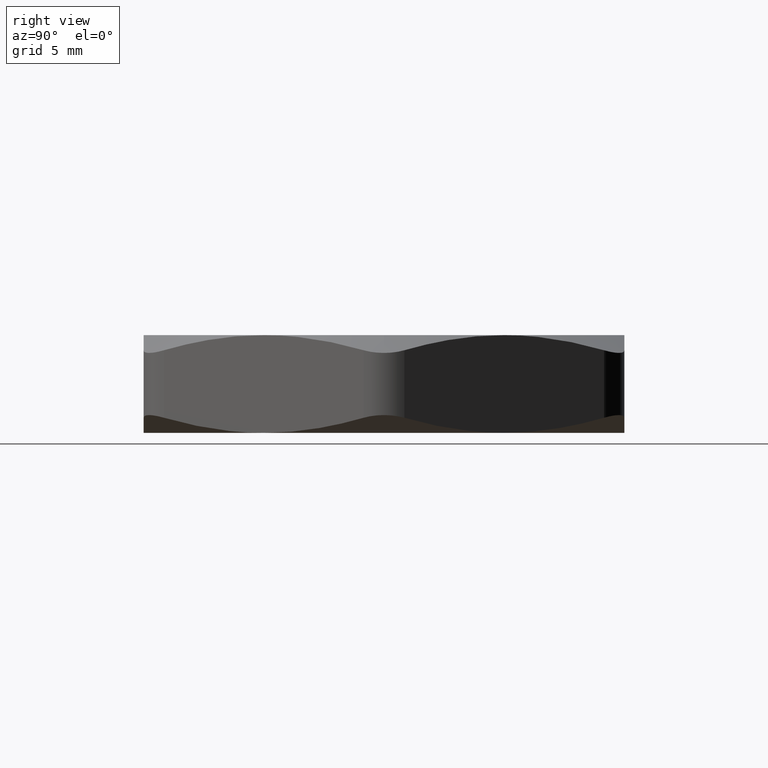
[diagram: clean part render]
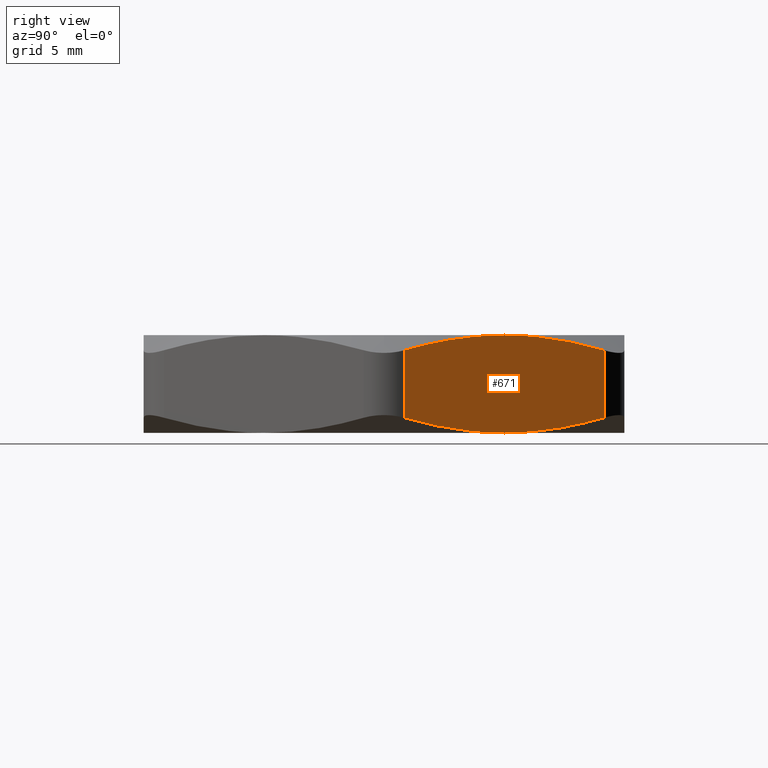
[diagram: same view with one face highlighted and labeled with its STEP entity id]
A machine part, right view. The second image highlights one B-rep face of the part: STEP entity #671.
In plain terms, the highlighted planar face has unit normal (-0.866, -0.5, 0).
Its self-contained STEP definition (entity closure, byte-faithful):
#21 = ORIENTED_EDGE ( 'NONE', *, *, #24, .F. ) ;
#24 = EDGE_CURVE ( 'NONE', #939, #567, #352, .T. ) ;
#343 = CARTESIAN_POINT ( 'NONE',  ( 0.3695041722813607900, 0.5400000000000000400, 0.2028654170483542300 ) ) ;
#344 = CARTESIAN_POINT ( 'NONE',  ( 0.3926425827318044100, 0.4999230974934493200, 0.2144171946891277300 ) ) ;
#345 = CARTESIAN_POINT ( 'NONE',  ( 0.4159643993470198400, 0.4595285261910923600, 0.2237544903653497500 ) ) ;
#346 = CARTESIAN_POINT ( 'NONE',  ( 0.4513116347115113100, 0.3983053186326971900, 0.2333592633957463400 ) ) ;
#347 = CARTESIAN_POINT ( 'NONE',  ( 0.4631547937755325900, 0.3777923654116925900, 0.2358273798961812200 ) ) ;
#348 = CARTESIAN_POINT ( 'NONE',  ( 0.4869748205001747100, 0.3365348688869639900, 0.2391491891068569500 ) ) ;
#349 = CARTESIAN_POINT ( 'NONE',  ( 0.4989953394545655300, 0.3157147193246143700, 0.2400000000000002700 ) ) ;
#350 = CARTESIAN_POINT ( 'NONE',  ( 0.5109549882328191500, 0.2950000000000000400, 0.2399999999999999900 ) ) ;
#352 = B_SPLINE_CURVE_WITH_KNOTS ( 'NONE', 3,
 ( #350, #349, #348, #347, #346, #345, #344, #343 ),
 .UNSPECIFIED., .F., .F.,
 ( 4, 2, 2, 4 ),
 ( 0.008754818042027720900, 0.01055895048476102900, 0.01236308292749433700, 0.01597134781296095200 ),
 .UNSPECIFIED. ) ;
#567 = VERTEX_POINT ( 'NONE', #1181 ) ;
#576 = ORIENTED_EDGE ( 'NONE', *, *, #987, .F. ) ;
#583 = ORIENTED_EDGE ( 'NONE', *, *, #585, .T. ) ;
#585 = EDGE_CURVE ( 'NONE', #589, #567, #1250, .T. ) ;
#588 = EDGE_CURVE ( 'NONE', #744, #592, #1238, .T. ) ;
#589 = VERTEX_POINT ( 'NONE', #1237 ) ;
#590 = EDGE_CURVE ( 'NONE', #589, #744, #1283, .T. ) ;
#591 = ORIENTED_EDGE ( 'NONE', *, *, #590, .F. ) ;
#592 = VERTEX_POINT ( 'NONE', #1282 ) ;
#594 = ORIENTED_EDGE ( 'NONE', *, *, #588, .F. ) ;
#598 = ORIENTED_EDGE ( 'NONE', *, *, #599, .T. ) ;
#599 = EDGE_CURVE ( 'NONE', #945, #592, #1281, .T. ) ;
#671 = ADVANCED_FACE ( 'NONE', ( #1498 ), #1494, .F. ) ;
#689 = EDGE_LOOP ( 'NONE', ( #576, #598, #594, #591, #583, #21 ) ) ;
#744 = VERTEX_POINT ( 'NONE', #1651 ) ;
#939 = VERTEX_POINT ( 'NONE', #2001 ) ;
#945 = VERTEX_POINT ( 'NONE', #1994 ) ;
#987 = EDGE_CURVE ( 'NONE', #945, #939, #2093, .T. ) ;
#1181 = CARTESIAN_POINT ( 'NONE',  ( 0.3695041722813607900, 0.5400000000000000400, 0.2028654170483542300 ) ) ;
#1237 = CARTESIAN_POINT ( 'NONE',  ( 0.3695041722813609000, 0.5400000000000000400, 0.03713458295164579600 ) ) ;
#1238 = B_SPLINE_CURVE_WITH_KNOTS ( 'NONE', 3,
 ( #1292, #1291, #1290, #1289, #1288, #1287, #1286, #1285 ),
 .UNSPECIFIED., .F., .F.,
 ( 4, 2, 2, 4 ),
 ( 0.008754818042027726100, 0.01055895048476076000, 0.01236308292749379600, 0.01597134781295987000 ),
 .UNSPECIFIED. ) ;
#1239 = VECTOR ( 'NONE', #1248, 39.37007874015748100 ) ;
#1248 = DIRECTION ( 'NONE',  ( 0.0000000000000000000, 0.0000000000000000000, 1.000000000000000000 ) ) ;
#1249 = CARTESIAN_POINT ( 'NONE',  ( 0.3695041722813609000, 0.5400000000000000400, 0.2399999999999999900 ) ) ;
#1250 = LINE ( 'NONE', #1249, #1239 ) ;
#1272 = DIRECTION ( 'NONE',  ( 0.0000000000000000000, 0.0000000000000000000, -1.000000000000000000 ) ) ;
#1273 = VECTOR ( 'NONE', #1272, 39.37007874015748100 ) ;
#1274 = CARTESIAN_POINT ( 'NONE',  ( 0.6524058041842771800, 0.05000000000000026000, 0.2399999999999999900 ) ) ;
#1275 = CARTESIAN_POINT ( 'NONE',  ( 0.5109549882328189300, 0.2949999999999999800, 0.0000000000000000000 ) ) ;
#1276 = CARTESIAN_POINT ( 'NONE',  ( 0.4869353365727525600, 0.3366032570553416600, -2.094238940455514200E-016 ) ) ;
#1277 = CARTESIAN_POINT ( 'NONE',  ( 0.4631618104060996600, 0.3777802122510523500, 0.003426863665491847400 ) ) ;
#1278 = CARTESIAN_POINT ( 'NONE',  ( 0.4160412341803087500, 0.4593954443560447400, 0.01621851907036185600 ) ) ;
#1279 = CARTESIAN_POINT ( 'NONE',  ( 0.3926923628449139900, 0.4998368758083364100, 0.02555795274812571600 ) ) ;
#1280 = CARTESIAN_POINT ( 'NONE',  ( 0.3695041722813609000, 0.5400000000000000400, 0.03713458295164579600 ) ) ;
#1281 = LINE ( 'NONE', #1274, #1273 ) ;
#1282 = CARTESIAN_POINT ( 'NONE',  ( 0.6524058041842564200, 0.05000000000003625200, 0.03713458295163533200 ) ) ;
#1283 = B_SPLINE_CURVE_WITH_KNOTS ( 'NONE', 3,
 ( #1280, #1279, #1278, #1277, #1276, #1275 ),
 .UNSPECIFIED., .F., .F.,
 ( 4, 2, 4 ),
 ( 0.001508011112065877700, 0.005131414577046801800, 0.008754818042027726100 ),
 .UNSPECIFIED. ) ;
#1285 = CARTESIAN_POINT ( 'NONE',  ( 0.6524058041842564200, 0.05000000000003625200, 0.03713458295163533200 ) ) ;
#1286 = CARTESIAN_POINT ( 'NONE',  ( 0.6292673937338164600, 0.09007690250658140200, 0.02558280531086494200 ) ) ;
#1287 = CARTESIAN_POINT ( 'NONE',  ( 0.6059455771186043100, 0.1304714738089325400, 0.01624550963464551500 ) ) ;
#1288 = CARTESIAN_POINT ( 'NONE',  ( 0.5705983417541178300, 0.1916946813673184300, 0.006640736604251722000 ) ) ;
#1289 = CARTESIAN_POINT ( 'NONE',  ( 0.5587551826900981600, 0.2122076345883198200, 0.004172620103817493800 ) ) ;
#1290 = CARTESIAN_POINT ( 'NONE',  ( 0.5349351559654599300, 0.2534651311130424200, 0.0008508108931427995400 ) ) ;
#1291 = CARTESIAN_POINT ( 'NONE',  ( 0.5229146370110709900, 0.2742852806753887700, -2.116470776341451600E-016 ) ) ;
#1292 = CARTESIAN_POINT ( 'NONE',  ( 0.5109549882328189300, 0.2949999999999999800, 0.0000000000000000000 ) ) ;
#1490 = DIRECTION ( 'NONE',  ( 0.4999999999999998300, -0.8660254037844388200, 0.0000000000000000000 ) ) ;
#1491 = DIRECTION ( 'NONE',  ( -0.8660254037844388200, -0.4999999999999998300, 0.0000000000000000000 ) ) ;
#1492 = CARTESIAN_POINT ( 'NONE',  ( 0.6812733176437585400, 2.358244943082909000E-016, 0.2399999999999999900 ) ) ;
#1493 = AXIS2_PLACEMENT_3D ( 'NONE', #1492, #1491, #1490 ) ;
#1494 = PLANE ( 'NONE',  #1493 ) ;
#1498 = FACE_OUTER_BOUND ( 'NONE', #689, .T. ) ;
#1651 = CARTESIAN_POINT ( 'NONE',  ( 0.5109549882328189300, 0.2949999999999999800, 0.0000000000000000000 ) ) ;
#1994 = CARTESIAN_POINT ( 'NONE',  ( 0.6524058041842771800, 0.05000000000000026600, 0.2028654170483543400 ) ) ;
#2001 = CARTESIAN_POINT ( 'NONE',  ( 0.5109549882328191500, 0.2950000000000000400, 0.2399999999999999900 ) ) ;
#2083 = CARTESIAN_POINT ( 'NONE',  ( 0.5109549882328191500, 0.2950000000000000400, 0.2399999999999999900 ) ) ;
#2084 = CARTESIAN_POINT ( 'NONE',  ( 0.5349746398928857400, 0.2533967429446585800, 0.2400000000000002100 ) ) ;
#2085 = CARTESIAN_POINT ( 'NONE',  ( 0.5587481660595383600, 0.2122197877489478700, 0.2365731363345081600 ) ) ;
#2086 = CARTESIAN_POINT ( 'NONE',  ( 0.6058687422853297200, 0.1306045556439555700, 0.2237814809296382300 ) ) ;
#2087 = CARTESIAN_POINT ( 'NONE',  ( 0.6292176136207235900, 0.09016312419166379300, 0.2144420472518743500 ) ) ;
#2088 = CARTESIAN_POINT ( 'NONE',  ( 0.6524058041842771800, 0.05000000000000026600, 0.2028654170483543400 ) ) ;
#2093 = B_SPLINE_CURVE_WITH_KNOTS ( 'NONE', 3,
 ( #2088, #2087, #2086, #2085, #2084, #2083 ),
 .UNSPECIFIED., .F., .F.,
 ( 4, 2, 4 ),
 ( 0.001508011112065878600, 0.005131414577046800000, 0.008754818042027720900 ),
 .UNSPECIFIED. ) ;